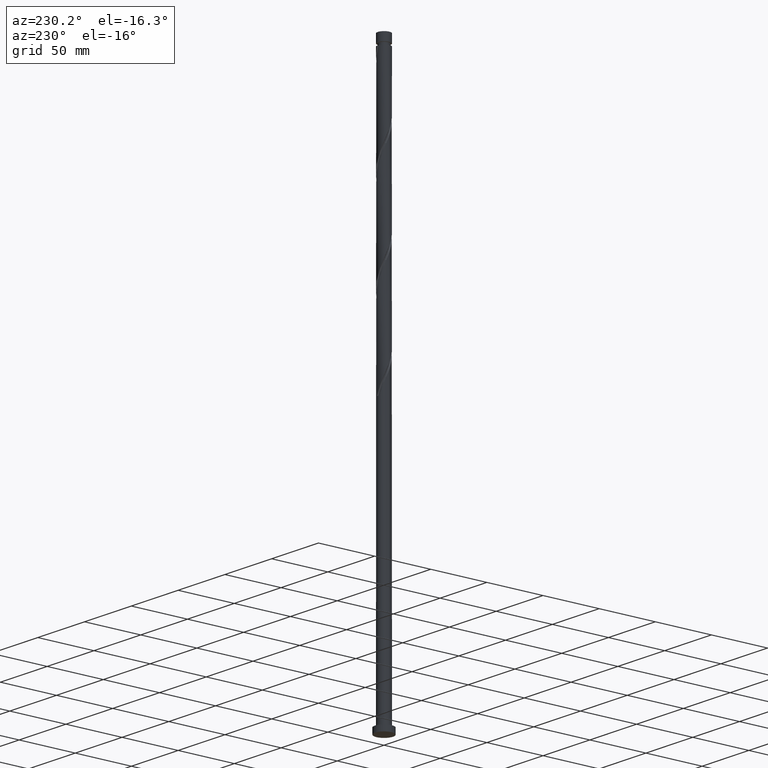
[diagram: clean part render]
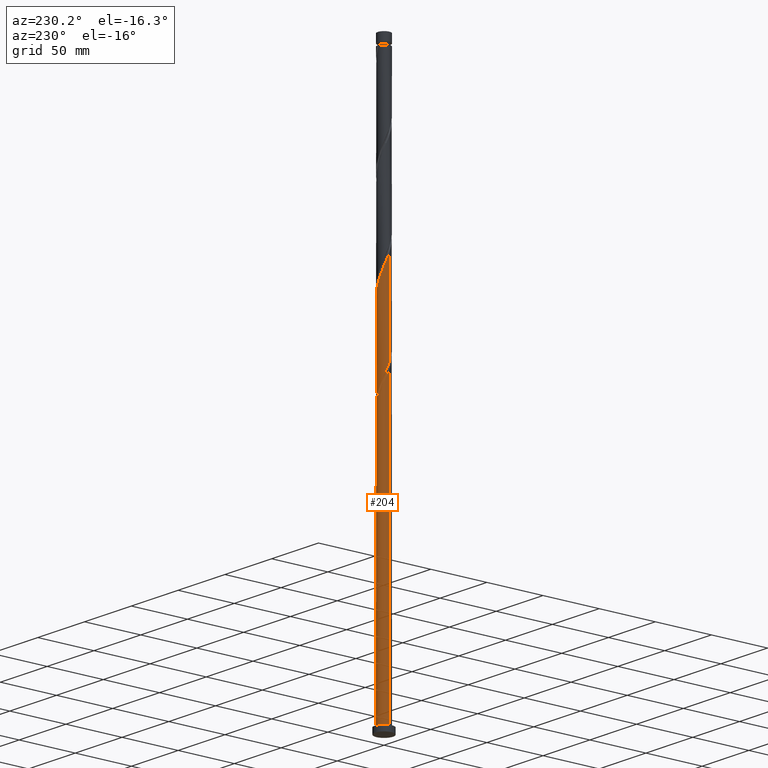
[diagram: same view with one face highlighted and labeled with its STEP entity id]
A machine part, auxiliary view. The second image highlights one B-rep face of the part: STEP entity #204.
In plain terms, the highlighted cylindrical surface (edge-blend (fillet) strip) has radius 5.5 mm, axis along (-0, -0, -1).
Its self-contained STEP definition (entity closure, byte-faithful):
#9 = VERTEX_POINT ( 'NONE', #334 ) ;
#19 = ORIENTED_EDGE ( 'NONE', *, *, #531, .F. ) ;
#24 = VECTOR ( 'NONE', #760, 1000.000000000000000 ) ;
#46 = CIRCLE ( 'NONE', #680, 5.500000000000000000 ) ;
#67 = CARTESIAN_POINT ( 'NONE',  ( 5.500000000000003553, -6.743336730817932239E-15, 300.3573637014411588 ) ) ;
#85 = CARTESIAN_POINT ( 'NONE',  ( 3.037386950224624904, 4.585224150966364043, 313.4308940127713754 ) ) ;
#92 = AXIS2_PLACEMENT_3D ( 'NONE', #1632, #820, #1964 ) ;
#96 = CARTESIAN_POINT ( 'NONE',  ( -5.072908999915564543, 2.124992771417274717, 258.7433940127714322 ) ) ;
#103 = CARTESIAN_POINT ( 'NONE',  ( -0.5636175167221723070, 5.497797479903722362, 322.5454773461047466 ) ) ;
#113 = VERTEX_POINT ( 'NONE', #1037 ) ;
#116 = CARTESIAN_POINT ( 'NONE',  ( 0.000000000000000000, 0.000000000000000000, 240.5142273461047751 ) ) ;
#126 = LINE ( 'NONE', #1419, #1482 ) ;
#139 = CARTESIAN_POINT ( 'NONE',  ( -4.585224150966365819, 3.037386950224624904, 250.9308940127713470 ) ) ;
#146 = CARTESIAN_POINT ( 'NONE',  ( -5.497797479903716145, 0.5636175167221716409, 262.6496440127713754 ) ) ;
#148 = CARTESIAN_POINT ( 'NONE',  ( -5.500000000000004441, 4.672621665052668578E-15, 342.0240303681078444 ) ) ;
#192 = VERTEX_POINT ( 'NONE', #585 ) ;
#204 = ADVANCED_FACE ( 'NONE', ( #742 ), #888, .T. ) ;
#214 = CARTESIAN_POINT ( 'NONE',  ( 1.094486180817288323, 5.389999999999998792, 240.5142273461047182 ) ) ;
#236 = CARTESIAN_POINT ( 'NONE',  ( 5.282202520096287657, 1.625354844912400676, 304.3163106794380610 ) ) ;
#245 = DIRECTION ( 'NONE',  ( -0.000000000000000000, -0.000000000000000000, -1.000000000000000000 ) ) ;
#257 = CIRCLE ( 'NONE', #92, 5.500000000000000000 ) ;
#271 = CARTESIAN_POINT ( 'NONE',  ( 5.390000000000004121, 1.094486180817286769, 303.0142273461046329 ) ) ;
#272 = CARTESIAN_POINT ( 'NONE',  ( -5.398552408587157458, 1.051490319374296600, 256.1392273461046898 ) ) ;
#283 = CARTESIAN_POINT ( 'NONE',  ( -5.500000000000000888, 0.5306389821094278370, 340.7480502626918337 ) ) ;
#308 = EDGE_CURVE ( 'NONE', #1125, #1387, #46, .T. ) ;
#309 = LINE ( 'NONE', #1405, #773 ) ;
#319 = CARTESIAN_POINT ( 'NONE',  ( -1.583201322193242389, 5.294989651415503928, 247.0246440127714322 ) ) ;
#334 = CARTESIAN_POINT ( 'NONE',  ( 5.500000000000000000, 6.735557395310442023E-16, 5.000000000000000000 ) ) ;
#357 = VERTEX_POINT ( 'NONE', #1067 ) ;
#393 = CARTESIAN_POINT ( 'NONE',  ( -5.294989651415510146, 1.583201322193245275, 338.1704773461047466 ) ) ;
#404 =( BOUNDED_CURVE ( )  B_SPLINE_CURVE ( 2, ( #67, #1045, #1073, #1525, #271, #236, #2025, #1034, #1860, #901, #1689, #423, #85, #739, #1556, #1851, #758, #1062, #412, #103, #1052, #1231, #1713, #721, #1358, #1694, #1872, #1682, #1999, #552, #1198, #393, #878, #283, #791 ),
 .UNSPECIFIED., .F., .T. ) 
 B_SPLINE_CURVE_WITH_KNOTS ( ( 3, 2, 2, 2, 2, 2, 2, 2, 2, 2, 2, 2, 2, 2, 2, 2, 2, 3 ),
 ( 0.1795286902180868449, 0.1796875000000000000, 0.1875000000000000000, 0.1953125000000000000, 0.2031250000000000000, 0.2109375000000000000, 0.2187500000000000000, 0.2265625000000000000, 0.2343750000000000000, 0.2421875000000000000, 0.2500000000000000000, 0.2578125000000000000, 0.2656250000000000000, 0.2734375000000000000, 0.2812500000000000000, 0.2890625000000000000, 0.2968750000000000000, 0.3045286902180867616 ),
 .UNSPECIFIED. ) 
 CURVE ( )  GEOMETRIC_REPRESENTATION_ITEM ( )  RATIONAL_B_SPLINE_CURVE ( ( 0.9089165573359528905, 0.9090019243628578716, 0.9090909090909499168, 0.9047133878838560239, 0.9090909090909499168, 0.9047133878838560239, 0.9090909090909499168, 0.9047133878838560239, 0.9090909090909499168, 0.9047133878838560239, 0.9090909090909499168, 0.9047133878838560239, 0.9090909090909499168, 0.9047133878838560239, 0.9090909090909499168, 0.9047133878838560239, 0.9090909090909499168, 0.9047133878838560239, 0.9090909090909499168, 0.9047133878838560239, 0.9090909090909499168, 0.9047133878838560239, 0.9090909090909499168, 0.9047133878838560239, 0.9090909090909499168, 0.9047133878838560239, 0.9090909090909499168, 0.9047133878838560239, 0.9090909090909499168, 0.9047133878838560239, 0.9090909090909499168, 0.9047133878838560239, 0.9090909090909499168, 0.9048023726119480692, 0.9089165573359528905 ) ) 
 REPRESENTATION_ITEM ( '' )  );
#412 = CARTESIAN_POINT ( 'NONE',  ( -0.02191910008340933191, 5.499956322831262234, 321.2433940127713754 ) ) ;
#414 = CARTESIAN_POINT ( 'NONE',  ( -4.560868951884518907, 3.073837081521372472, 256.1392273461047466 ) ) ;
#423 = CARTESIAN_POINT ( 'NONE',  ( 3.488992111560461851, 4.286067647700003924, 312.1288106794380610 ) ) ;
#425 = DIRECTION ( 'NONE',  ( -5.602705292762865325E-30, -1.261617073437678088E-14, -1.000000000000000000 ) ) ;
#509 = EDGE_CURVE ( 'NONE', #113, #659, #404, .T. ) ;
#531 = EDGE_CURVE ( 'NONE', #357, #978, #126, .T. ) ;
#552 = CARTESIAN_POINT ( 'NONE',  ( -4.884380654232723273, 2.585781788888784849, 335.5663106794381747 ) ) ;
#555 =( BOUNDED_CURVE ( )  B_SPLINE_CURVE ( 2, ( #809, #1398, #970, #146, #2084, #957, #96, #592, #414, #1065, #1054, #639, #800, #896, #1547, #319, #1755, #750, #1716, #903, #1286 ),
 .UNSPECIFIED., .F., .T. ) 
 B_SPLINE_CURVE_WITH_KNOTS ( ( 3, 2, 2, 2, 2, 2, 2, 2, 2, 2, 3 ),
 ( 0.9295286902180884825, 0.9296875000000000000, 0.9375000000000000000, 0.9453125000000000000, 0.9531250000000000000, 0.9609375000000000000, 0.9687500000000000000, 0.9765625000000000000, 0.9843750000000000000, 0.9921875000000000000, 1.000000000000000000 ),
 .UNSPECIFIED. ) 
 CURVE ( )  GEOMETRIC_REPRESENTATION_ITEM ( )  RATIONAL_B_SPLINE_CURVE ( ( 0.9089165573359501149, 0.9090019243628542078, 0.9090909090909452539, 0.9047133878838512500, 0.9090909090909452539, 0.9047133878838512500, 0.9090909090909452539, 0.9047133878838512500, 0.9090909090909452539, 0.9047133878838512500, 0.9090909090909452539, 0.9047133878838512500, 0.9090909090909452539, 0.9047133878838512500, 0.9090909090909452539, 0.9047133878838512500, 0.9090909090909452539, 0.9047133878838512500, 0.9090909090909452539, 0.9047133878838512500, 0.9090909090909452539 ) ) 
 REPRESENTATION_ITEM ( '' )  );
#576 = CARTESIAN_POINT ( 'NONE',  ( -5.500000000000000000, 0.000000000000000000, 500.0000000000000000 ) ) ;
#585 = CARTESIAN_POINT ( 'NONE',  ( -5.500000000000000000, 1.804877001111714854E-13, 264.0044243241010804 ) ) ;
#590 = CARTESIAN_POINT ( 'NONE',  ( -4.286067647700003036, 3.488992111560462295, 249.6288106794380326 ) ) ;
#592 = CARTESIAN_POINT ( 'NONE',  ( -4.863615479734846758, 2.624630697922146982, 257.4413106794381179 ) ) ;
#600 = DIRECTION ( 'NONE',  ( -0.000000000000000000, -0.000000000000000000, -1.000000000000000000 ) ) ;
#604 = CARTESIAN_POINT ( 'NONE',  ( -3.073837081521374248, 4.560868951884520683, 245.7225606794380042 ) ) ;
#639 = CARTESIAN_POINT ( 'NONE',  ( -3.488992111560458742, 4.286067647699998595, 252.2329773461046329 ) ) ;
#641 = ORIENTED_EDGE ( 'NONE', *, *, #2043, .F. ) ;
#645 = CARTESIAN_POINT ( 'NONE',  ( -3.523043465120600182, 4.258122424034191056, 247.0246440127713754 ) ) ;
#659 = VERTEX_POINT ( 'NONE', #148 ) ;
#675 = CARTESIAN_POINT ( 'NONE',  ( -5.500000000000000000, 0.000000000000000000, 5.000000000000000000 ) ) ;
#680 = AXIS2_PLACEMENT_3D ( 'NONE', #116, #425, #770 ) ;
#703 = CARTESIAN_POINT ( 'NONE',  ( -5.500000000000004441, 4.672621665052668578E-15, 258.6906970347745869 ) ) ;
#721 = CARTESIAN_POINT ( 'NONE',  ( -2.624630697922148759, 4.863615479734851199, 327.7538106794380610 ) ) ;
#739 = CARTESIAN_POINT ( 'NONE',  ( 2.585781788888787958, 4.884380654232723273, 314.7329773461046898 ) ) ;
#742 = FACE_OUTER_BOUND ( 'NONE', #1468, .T. ) ;
#750 = CARTESIAN_POINT ( 'NONE',  ( -0.5197793165553465933, 5.502115165758800330, 244.4204773461047751 ) ) ;
#758 = CARTESIAN_POINT ( 'NONE',  ( 1.051490319374299931, 5.398552408587157458, 318.6392273461045761 ) ) ;
#760 = DIRECTION ( 'NONE',  ( -0.000000000000000000, -0.000000000000000000, -1.000000000000000000 ) ) ;
#770 = DIRECTION ( 'NONE',  ( 0.000000000000000000, 1.000000000000000000, -1.513940488125213579E-14 ) ) ;
#773 = VECTOR ( 'NONE', #600, 1000.000000000000000 ) ;
#776 = EDGE_CURVE ( 'NONE', #113, #9, #309, .T. ) ;
#791 = CARTESIAN_POINT ( 'NONE',  ( -5.500000000000004441, 4.672621665052668578E-15, 342.0240303681078444 ) ) ;
#792 = CARTESIAN_POINT ( 'NONE',  ( -4.884380654232723273, 2.585781788888784849, 252.2329773461046614 ) ) ;
#800 = CARTESIAN_POINT ( 'NONE',  ( -3.037386950224621796, 4.585224150966358714, 250.9308940127714038 ) ) ;
#809 = CARTESIAN_POINT ( 'NONE',  ( -5.500000000000000000, 1.804877001111714854E-13, 264.0044243241010804 ) ) ;
#820 = DIRECTION ( 'NONE',  ( 0.000000000000000000, 0.000000000000000000, 1.000000000000000000 ) ) ;
#878 = CARTESIAN_POINT ( 'NONE',  ( -5.398552408587157458, 1.051490319374296600, 339.4725606794380610 ) ) ;
#888 = CYLINDRICAL_SURFACE ( 'NONE', #2004, 5.500000000000000000 ) ;
#896 = CARTESIAN_POINT ( 'NONE',  ( -2.585781788888782629, 4.884380654232720609, 249.6288106794380042 ) ) ;
#901 = CARTESIAN_POINT ( 'NONE',  ( 4.258122424034191056, 3.523043465120599294, 309.5246440127714322 ) ) ;
#903 = CARTESIAN_POINT ( 'NONE',  ( 0.5636175167221718629, 5.497797479903716145, 241.8163106794380610 ) ) ;
#913 = CARTESIAN_POINT ( 'NONE',  ( -5.500000000000007105, 0.5306389821093954184, 257.4147169293585762 ) ) ;
#921 = DIRECTION ( 'NONE',  ( -0.000000000000000000, -0.000000000000000000, -1.000000000000000000 ) ) ;
#957 = CARTESIAN_POINT ( 'NONE',  ( -5.282202520096279663, 1.625354844912402896, 260.0454773461047466 ) ) ;
#964 = EDGE_CURVE ( 'NONE', #9, #978, #257, .T. ) ;
#970 = CARTESIAN_POINT ( 'NONE',  ( -5.499956322831258682, 0.02191910008341289504, 263.9517273461047466 ) ) ;
#978 = VERTEX_POINT ( 'NONE', #675 ) ;
#1034 = CARTESIAN_POINT ( 'NONE',  ( 4.863615479734852087, 2.624630697922146982, 306.9204773461047466 ) ) ;
#1037 = CARTESIAN_POINT ( 'NONE',  ( 5.500000000000003553, -6.743336730817932239E-15, 300.3573637014411588 ) ) ;
#1045 = CARTESIAN_POINT ( 'NONE',  ( 5.500000000000005329, 0.01095959355840916624, 300.3837172559584587 ) ) ;
#1052 = CARTESIAN_POINT ( 'NONE',  ( -1.094486180817286547, 5.390000000000004121, 323.8475606794380610 ) ) ;
#1054 = CARTESIAN_POINT ( 'NONE',  ( -3.873557267797324233, 3.904555556410299388, 253.5350606794380894 ) ) ;
#1062 = CARTESIAN_POINT ( 'NONE',  ( 0.5197793165553485917, 5.502115165758805659, 319.9413106794381747 ) ) ;
#1065 = CARTESIAN_POINT ( 'NONE',  ( -4.258122424034185727, 3.523043465120596629, 254.8371440127714038 ) ) ;
#1067 = CARTESIAN_POINT ( 'NONE',  ( -5.500000000000004441, 4.672621665052668578E-15, 258.6906970347745869 ) ) ;
#1073 = CARTESIAN_POINT ( 'NONE',  ( 5.499956322831262234, 0.02191910008340954355, 300.4100606794381179 ) ) ;
#1125 = VERTEX_POINT ( 'NONE', #1406 ) ;
#1126 = ORIENTED_EDGE ( 'NONE', *, *, #509, .F. ) ;
#1145 = ORIENTED_EDGE ( 'NONE', *, *, #308, .T. ) ;
#1198 = CARTESIAN_POINT ( 'NONE',  ( -5.089685152824117154, 2.084491555541015284, 336.8683940127714322 ) ) ;
#1215 = ORIENTED_EDGE ( 'NONE', *, *, #1847, .F. ) ;
#1231 = CARTESIAN_POINT ( 'NONE',  ( -1.625354844912402896, 5.282202520096286769, 325.1496440127714322 ) ) ;
#1232 = CARTESIAN_POINT ( 'NONE',  ( -5.089685152824117154, 2.084491555541015284, 253.5350606794380326 ) ) ;
#1286 = CARTESIAN_POINT ( 'NONE',  ( 1.094486180817288323, 5.389999999999998792, 240.5142273461047182 ) ) ;
#1358 = CARTESIAN_POINT ( 'NONE',  ( -3.073837081521374248, 4.560868951884520683, 329.0558940127713186 ) ) ;
#1387 = VERTEX_POINT ( 'NONE', #214 ) ;
#1398 = CARTESIAN_POINT ( 'NONE',  ( -5.500000000000000000, 0.01095959355852552282, 263.9780707695840078 ) ) ;
#1405 = CARTESIAN_POINT ( 'NONE',  ( 5.500000000000000000, 6.735557395310442023E-16, 500.0000000000000000 ) ) ;
#1406 = CARTESIAN_POINT ( 'NONE',  ( -1.094486180817286325, 5.390000000000005009, 240.5142273461047182 ) ) ;
#1419 = CARTESIAN_POINT ( 'NONE',  ( -5.500000000000000000, 0.000000000000000000, 500.0000000000000000 ) ) ;
#1449 = CARTESIAN_POINT ( 'NONE',  ( -1.094486180817286325, 5.390000000000004121, 240.5142273461046898 ) ) ;
#1468 = EDGE_LOOP ( 'NONE', ( #1126, #1944, #2086, #19, #641, #1145, #1215, #2048 ) ) ;
#1482 = VECTOR ( 'NONE', #921, 1000.000000000000000 ) ;
#1525 = CARTESIAN_POINT ( 'NONE',  ( 5.497797479903722362, 0.5636175167221727511, 301.7121440127713754 ) ) ;
#1527 = CARTESIAN_POINT ( 'NONE',  ( 0.000000000000000000, 0.000000000000000000, 500.0000000000000000 ) ) ;
#1547 = CARTESIAN_POINT ( 'NONE',  ( -2.084491555541012175, 5.089685152824110936, 248.3267273461047182 ) ) ;
#1556 = CARTESIAN_POINT ( 'NONE',  ( 2.084491555541014840, 5.089685152824117154, 316.0350606794380610 ) ) ;
#1567 = CARTESIAN_POINT ( 'NONE',  ( -2.624630697922148759, 4.863615479734851199, 244.4204773461046898 ) ) ;
#1591 = CARTESIAN_POINT ( 'NONE',  ( -2.124992771417276494, 5.072908999915568984, 243.1183940127713754 ) ) ;
#1615 = CARTESIAN_POINT ( 'NONE',  ( -3.904555556410301609, 3.873557267797327786, 248.3267273461046898 ) ) ;
#1632 = CARTESIAN_POINT ( 'NONE',  ( 0.000000000000000000, 0.000000000000000000, 5.000000000000000000 ) ) ;
#1674 = EDGE_CURVE ( 'NONE', #659, #192, #1876, .T. ) ;
#1682 = CARTESIAN_POINT ( 'NONE',  ( -4.286067647700003036, 3.488992111560462295, 332.9621440127713754 ) ) ;
#1689 = CARTESIAN_POINT ( 'NONE',  ( 3.873557267797329562, 3.904555556410300721, 310.8267273461048035 ) ) ;
#1694 = CARTESIAN_POINT ( 'NONE',  ( -3.523043465120600182, 4.258122424034191056, 330.3579773461046898 ) ) ;
#1707 = DIRECTION ( 'NONE',  ( -1.000000000000000000, 0.000000000000000000, 0.000000000000000000 ) ) ;
#1713 = CARTESIAN_POINT ( 'NONE',  ( -2.124992771417276494, 5.072908999915568984, 326.4517273461046329 ) ) ;
#1715 = CARTESIAN_POINT ( 'NONE',  ( -5.294989651415510146, 1.583201322193245275, 254.8371440127713754 ) ) ;
#1716 = CARTESIAN_POINT ( 'NONE',  ( 0.02191910008341267993, 5.499956322831258682, 243.1183940127713754 ) ) ;
#1755 = CARTESIAN_POINT ( 'NONE',  ( -1.051490319374294602, 5.398552408587152129, 245.7225606794380326 ) ) ;
#1847 = EDGE_CURVE ( 'NONE', #192, #1387, #555, .T. ) ;
#1851 = CARTESIAN_POINT ( 'NONE',  ( 1.583201322193246163, 5.294989651415510146, 317.3371440127714322 ) ) ;
#1860 = CARTESIAN_POINT ( 'NONE',  ( 4.560868951884520683, 3.073837081521375136, 308.2225606794381179 ) ) ;
#1872 = CARTESIAN_POINT ( 'NONE',  ( -3.904555556410301609, 3.873557267797327786, 331.6600606794381179 ) ) ;
#1876 = LINE ( 'NONE', #576, #24 ) ;
#1944 = ORIENTED_EDGE ( 'NONE', *, *, #776, .T. ) ;
#1964 = DIRECTION ( 'NONE',  ( 1.000000000000000000, 0.000000000000000000, 0.000000000000000000 ) ) ;
#1999 = CARTESIAN_POINT ( 'NONE',  ( -4.585224150966365819, 3.037386950224624904, 334.2642273461048035 ) ) ;
#2004 = AXIS2_PLACEMENT_3D ( 'NONE', #1527, #245, #1707 ) ;
#2025 = CARTESIAN_POINT ( 'NONE',  ( 5.072908999915568984, 2.124992771417276494, 305.6183940127713186 ) ) ;
#2043 = EDGE_CURVE ( 'NONE', #1125, #357, #2097, .T. ) ;
#2048 = ORIENTED_EDGE ( 'NONE', *, *, #1674, .F. ) ;
#2050 = CARTESIAN_POINT ( 'NONE',  ( -1.625354844912402896, 5.282202520096286769, 241.8163106794380326 ) ) ;
#2084 = CARTESIAN_POINT ( 'NONE',  ( -5.389999999999999680, 1.094486180817287435, 261.3475606794381179 ) ) ;
#2086 = ORIENTED_EDGE ( 'NONE', *, *, #964, .T. ) ;
#2097 =( BOUNDED_CURVE ( )  B_SPLINE_CURVE ( 2, ( #1449, #2050, #1591, #1567, #604, #645, #1615, #590, #139, #792, #1232, #1715, #272, #913, #703 ),
 .UNSPECIFIED., .F., .T. ) 
 B_SPLINE_CURVE_WITH_KNOTS ( ( 3, 2, 2, 2, 2, 2, 2, 3 ),
 ( 0.000000000000000000, 0.007812500000000000000, 0.01562500000000000000, 0.02343750000000000000, 0.03125000000000000000, 0.03906250000000000694, 0.04687500000000000000, 0.05452869021808723349 ),
 .UNSPECIFIED. ) 
 CURVE ( )  GEOMETRIC_REPRESENTATION_ITEM ( )  RATIONAL_B_SPLINE_CURVE ( ( 0.9090909090909499168, 0.9047133878838560239, 0.9090909090909499168, 0.9047133878838560239, 0.9090909090909499168, 0.9047133878838560239, 0.9090909090909499168, 0.9047133878838560239, 0.9090909090909499168, 0.9047133878838560239, 0.9090909090909499168, 0.9047133878838560239, 0.9090909090909499168, 0.9048023726119478471, 0.9089165573359533346 ) ) 
 REPRESENTATION_ITEM ( '' )  );